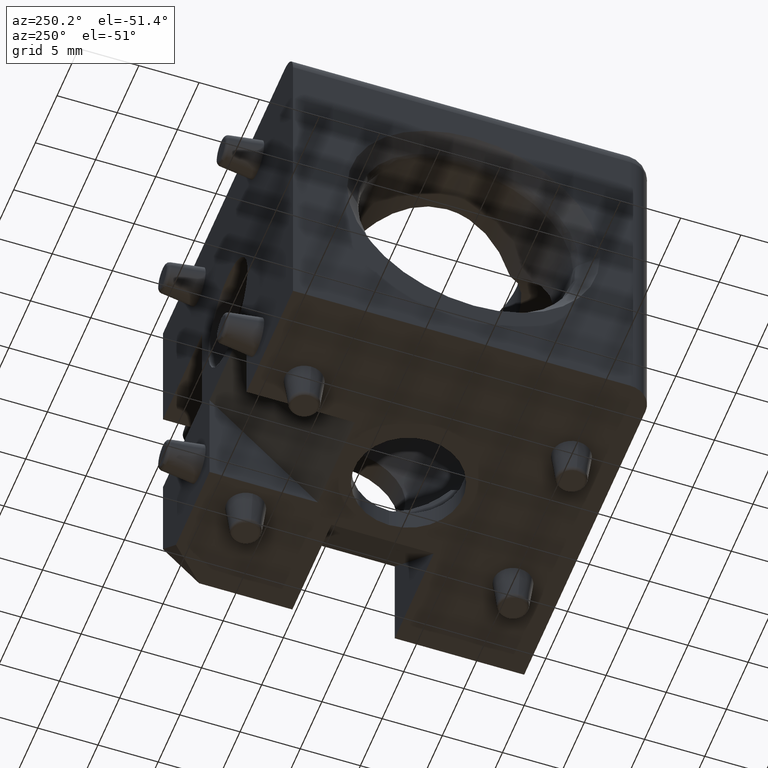
[diagram: clean part render]
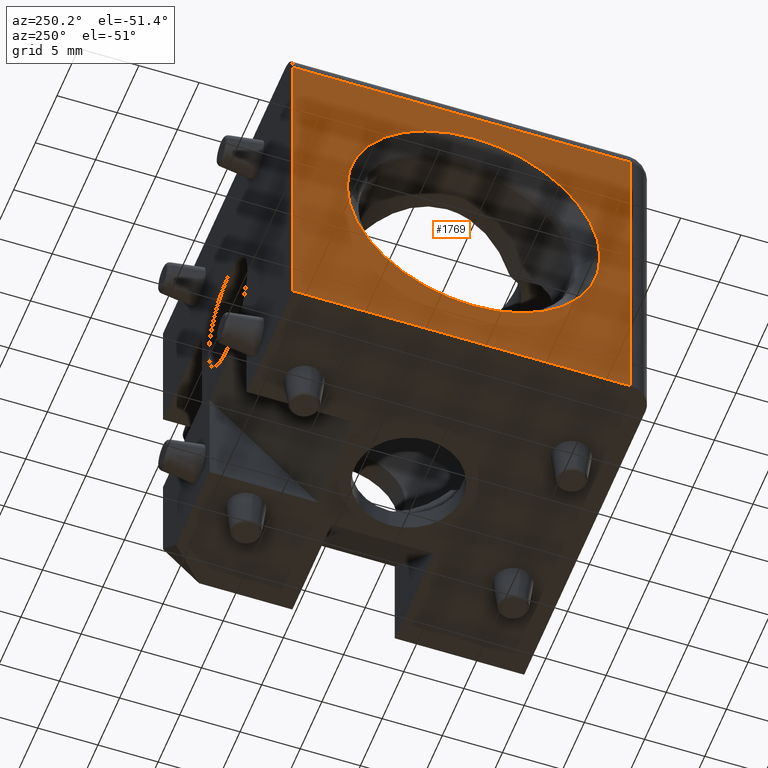
[diagram: same view with one face highlighted and labeled with its STEP entity id]
A machine part, auxiliary view. The second image highlights one B-rep face of the part: STEP entity #1769.
In plain terms, the highlighted planar face has unit normal (1, 0, 0).
Its self-contained STEP definition (entity closure, byte-faithful):
#32=FACE_BOUND('',#522,.T.);
#38=PLANE('',#2013);
#153=LINE('',#3300,#252);
#163=LINE('',#3324,#262);
#180=LINE('',#3504,#279);
#181=LINE('',#3505,#280);
#252=VECTOR('',#2455,28.);
#262=VECTOR('',#2477,28.);
#279=VECTOR('',#2546,28.);
#280=VECTOR('',#2547,28.);
#389=FACE_OUTER_BOUND('',#521,.T.);
#521=EDGE_LOOP('',(#1453,#1454,#1455,#1456));
#522=EDGE_LOOP('',(#1457,#1458));
#603=CIRCLE('',#1856,10.5);
#713=CIRCLE('',#2014,10.5);
#748=VERTEX_POINT('',#2761);
#749=VERTEX_POINT('',#2763);
#866=VERTEX_POINT('',#3297);
#867=VERTEX_POINT('',#3299);
#875=VERTEX_POINT('',#3323);
#890=VERTEX_POINT('',#3503);
#911=EDGE_CURVE('',#749,#748,#603,.T.);
#1071=EDGE_CURVE('',#867,#866,#153,.T.);
#1086=EDGE_CURVE('',#875,#867,#163,.T.);
#1127=EDGE_CURVE('',#866,#890,#180,.T.);
#1128=EDGE_CURVE('',#890,#875,#181,.T.);
#1129=EDGE_CURVE('',#748,#749,#713,.T.);
#1453=ORIENTED_EDGE('',*,*,#1071,.T.);
#1454=ORIENTED_EDGE('',*,*,#1127,.T.);
#1455=ORIENTED_EDGE('',*,*,#1128,.T.);
#1456=ORIENTED_EDGE('',*,*,#1086,.T.);
#1457=ORIENTED_EDGE('',*,*,#911,.T.);
#1458=ORIENTED_EDGE('',*,*,#1129,.T.);
#1769=ADVANCED_FACE('',(#389,#32),#38,.F.);
#1856=AXIS2_PLACEMENT_3D('',#2764,#2144,#2145);
#2013=AXIS2_PLACEMENT_3D('',#3502,#2544,#2545);
#2014=AXIS2_PLACEMENT_3D('',#3506,#2548,#2549);
#2144=DIRECTION('center_axis',(1.,1.65211759616839E-16,0.));
#2145=DIRECTION('ref_axis',(-1.65211759616839E-16,1.,0.));
#2455=DIRECTION('',(1.15648231731787E-16,-1.,0.));
#2477=DIRECTION('',(0.,0.,-1.));
#2544=DIRECTION('center_axis',(1.,1.54673883685891E-48,1.33745135026891E-32));
#2545=DIRECTION('ref_axis',(0.,1.,0.));
#2546=DIRECTION('',(0.,0.,1.));
#2547=DIRECTION('',(-1.15648231731787E-16,1.,0.));
#2548=DIRECTION('center_axis',(1.,1.65211759616839E-16,0.));
#2549=DIRECTION('ref_axis',(-1.65211759616839E-16,1.,0.));
#2761=CARTESIAN_POINT('',(-15.,10.5,1.28587913910472E-15));
#2763=CARTESIAN_POINT('',(-15.,-10.5,0.));
#2764=CARTESIAN_POINT('Origin',(-15.,3.17977330203011E-17,0.));
#3297=CARTESIAN_POINT('',(-15.,-13.,-15.));
#3299=CARTESIAN_POINT('',(-15.,15.,-15.));
#3300=CARTESIAN_POINT('',(-15.,15.,-15.));
#3323=CARTESIAN_POINT('',(-15.,15.,13.));
#3324=CARTESIAN_POINT('',(-15.,15.,15.));
#3502=CARTESIAN_POINT('Origin',(-15.,15.,15.));
#3503=CARTESIAN_POINT('',(-15.,-13.,13.));
#3504=CARTESIAN_POINT('',(-15.,-13.,15.));
#3505=CARTESIAN_POINT('',(-15.,15.,13.));
#3506=CARTESIAN_POINT('Origin',(-15.,3.17977330203011E-17,0.));